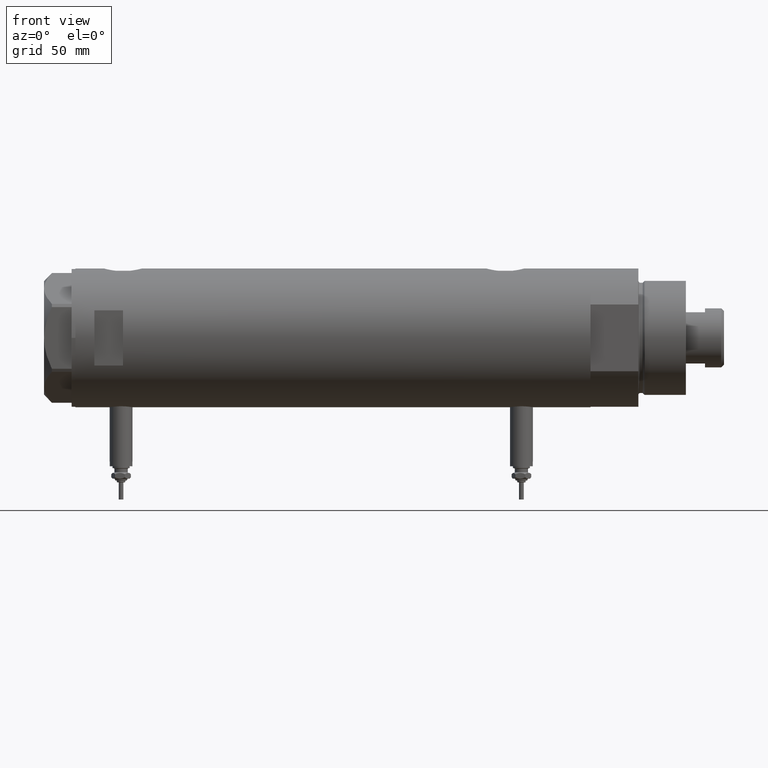
[diagram: clean part render]
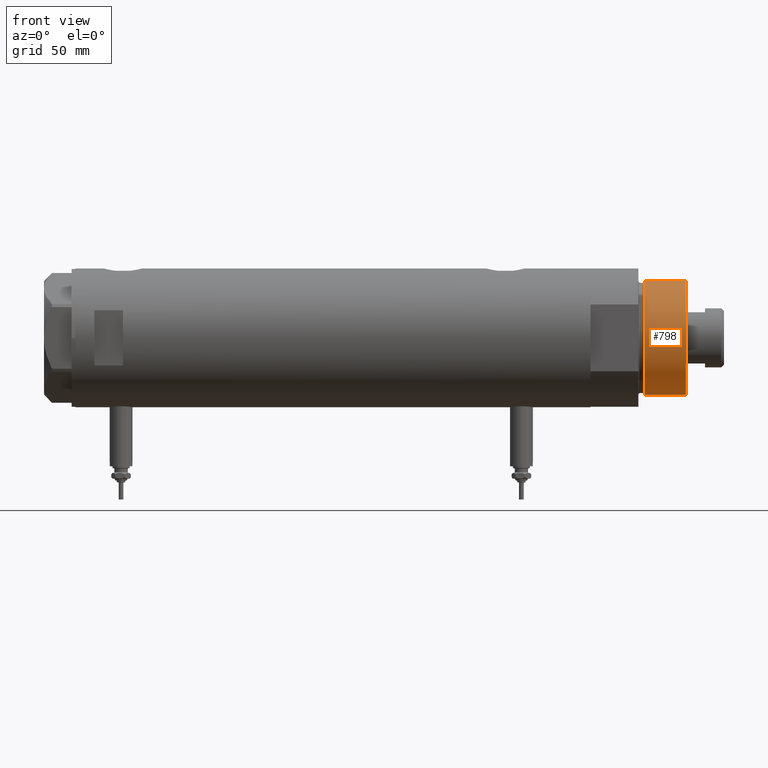
[diagram: same view with one face highlighted and labeled with its STEP entity id]
A machine part, front view. The second image highlights one B-rep face of the part: STEP entity #798.
In plain terms, the highlighted cylindrical surface (partial cylindrical patch) has radius 30 mm, axis along (-1, -0, 0).
Its self-contained STEP definition (entity closure, byte-faithful):
#304 = DIRECTION ( 'NONE',  ( -0.000000000000000000, -0.000000000000000000, -1.000000000000000000 ) ) ;
#353 = AXIS2_PLACEMENT_3D ( 'NONE', #5333, #3988, #3050 ) ;
#651 = EDGE_CURVE ( 'NONE', #3027, #4346, #4581, .T. ) ;
#726 = AXIS2_PLACEMENT_3D ( 'NONE', #2254, #4085, #5502 ) ;
#789 = LINE ( 'NONE', #1214, #4790 ) ;
#798 = ADVANCED_FACE ( 'NONE', ( #4374 ), #5749, .T. ) ;
#994 = ORIENTED_EDGE ( 'NONE', *, *, #651, .F. ) ;
#1175 = CARTESIAN_POINT ( 'NONE',  ( -30.00000000000000000, 0.000000000000000000, 50.19999999999999574 ) ) ;
#1214 = CARTESIAN_POINT ( 'NONE',  ( 30.00000000000000000, 3.673940397442058389E-15, 50.19999999999999574 ) ) ;
#1223 = VERTEX_POINT ( 'NONE', #3797 ) ;
#1263 = CIRCLE ( 'NONE', #4324, 30.00000000000000000 ) ;
#1740 = CARTESIAN_POINT ( 'NONE',  ( -30.00000000000000000, 0.000000000000000000, 50.19999999999999574 ) ) ;
#2031 = EDGE_LOOP ( 'NONE', ( #2994, #994, #3063, #2585 ) ) ;
#2077 = LINE ( 'NONE', #1175, #2680 ) ;
#2254 = CARTESIAN_POINT ( 'NONE',  ( 0.000000000000000000, 0.000000000000000000, 50.19999999999999574 ) ) ;
#2573 = EDGE_CURVE ( 'NONE', #3027, #3941, #2077, .T. ) ;
#2585 = ORIENTED_EDGE ( 'NONE', *, *, #4955, .T. ) ;
#2628 = DIRECTION ( 'NONE',  ( -0.000000000000000000, -0.000000000000000000, -1.000000000000000000 ) ) ;
#2680 = VECTOR ( 'NONE', #304, 1000.000000000000000 ) ;
#2994 = ORIENTED_EDGE ( 'NONE', *, *, #3396, .F. ) ;
#3027 = VERTEX_POINT ( 'NONE', #1740 ) ;
#3050 = DIRECTION ( 'NONE',  ( -1.000000000000000000, 0.000000000000000000, 0.000000000000000000 ) ) ;
#3063 = ORIENTED_EDGE ( 'NONE', *, *, #2573, .T. ) ;
#3396 = EDGE_CURVE ( 'NONE', #4346, #1223, #789, .T. ) ;
#3488 = CARTESIAN_POINT ( 'NONE',  ( 0.000000000000000000, 0.000000000000000000, 28.57384048104054486 ) ) ;
#3797 = CARTESIAN_POINT ( 'NONE',  ( 30.00000000000000000, 3.673940397442058389E-15, 28.57384048104054486 ) ) ;
#3941 = VERTEX_POINT ( 'NONE', #5389 ) ;
#3988 = DIRECTION ( 'NONE',  ( -0.000000000000000000, -0.000000000000000000, -1.000000000000000000 ) ) ;
#4085 = DIRECTION ( 'NONE',  ( 0.000000000000000000, 0.000000000000000000, 1.000000000000000000 ) ) ;
#4324 = AXIS2_PLACEMENT_3D ( 'NONE', #3488, #5377, #4888 ) ;
#4346 = VERTEX_POINT ( 'NONE', #5091 ) ;
#4374 = FACE_OUTER_BOUND ( 'NONE', #2031, .T. ) ;
#4581 = CIRCLE ( 'NONE', #726, 30.00000000000000000 ) ;
#4790 = VECTOR ( 'NONE', #2628, 1000.000000000000000 ) ;
#4888 = DIRECTION ( 'NONE',  ( 1.000000000000000000, 0.000000000000000000, 0.000000000000000000 ) ) ;
#4955 = EDGE_CURVE ( 'NONE', #3941, #1223, #1263, .T. ) ;
#5091 = CARTESIAN_POINT ( 'NONE',  ( 30.00000000000000000, 3.673940397442058389E-15, 50.19999999999999574 ) ) ;
#5333 = CARTESIAN_POINT ( 'NONE',  ( 0.000000000000000000, 0.000000000000000000, 50.19999999999999574 ) ) ;
#5377 = DIRECTION ( 'NONE',  ( -0.000000000000000000, -0.000000000000000000, 1.000000000000000000 ) ) ;
#5389 = CARTESIAN_POINT ( 'NONE',  ( -30.00000000000000000, 0.000000000000000000, 28.57384048104054486 ) ) ;
#5502 = DIRECTION ( 'NONE',  ( 1.000000000000000000, 0.000000000000000000, 0.000000000000000000 ) ) ;
#5749 = CYLINDRICAL_SURFACE ( 'NONE', #353, 30.00000000000000000 ) ;